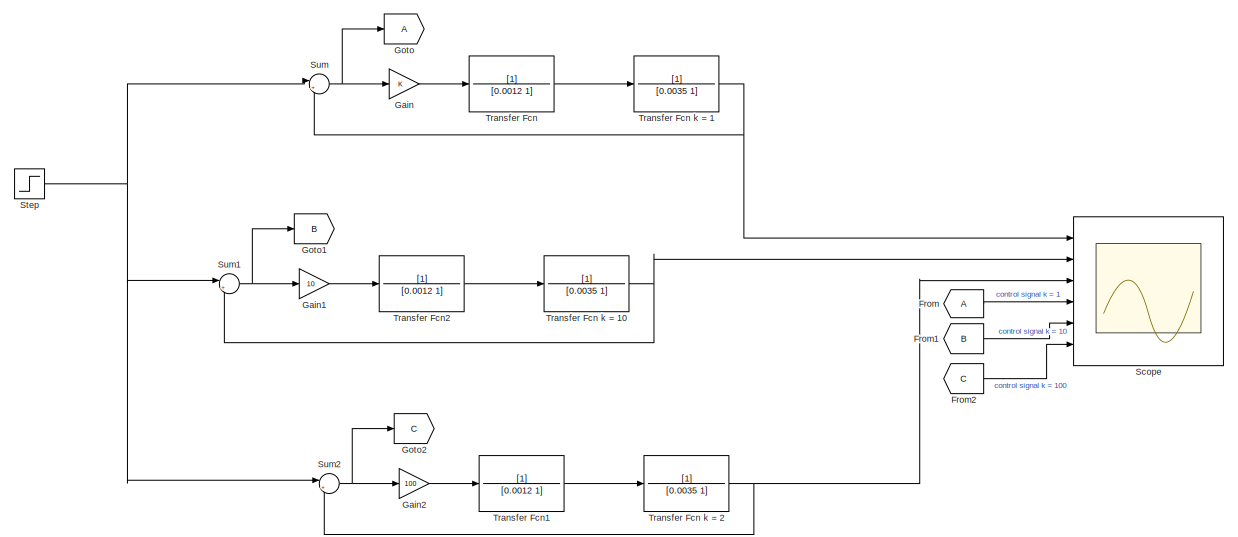
[diagram: root canvas - part 1/2, full width, top band]
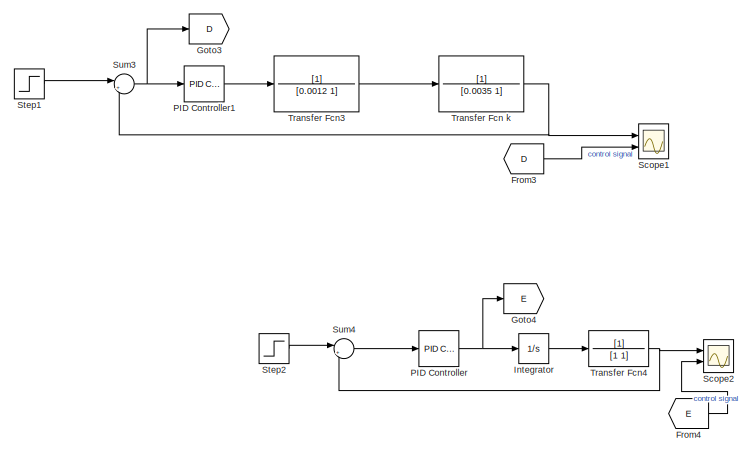
[diagram: root canvas - part 2/2, bottom center region]
MODEL slx_5337e425ebfc
KIND model
CONFIG AbsTol = auto
CONFIG EnableMultiTasking = off
CONFIG FixedStep = auto
CONFIG MaxStep = auto
CONFIG MinStep = auto
CONFIG RelTol = 1e-3
CONFIG SampleTimeConstraint = Unconstrained
CONFIG SolverName = VariableStepAuto
CONFIG StartTime = 0.0
CONFIG StopTime = 10
BLOCK [TransferFcn]  Transfer Fcn k = 10
  Denominator = [0.0035 1]
BLOCK [From] From
BLOCK [From] From1
  GotoTag = B
BLOCK [From] From2
  GotoTag = C
BLOCK [From] From3
  GotoTag = D
BLOCK [From] From4
  GotoTag = E
BLOCK [Gain] Gain
BLOCK [Gain] Gain1
  Gain = 10
BLOCK [Gain] Gain2
  Gain = 100
BLOCK [Goto] Goto
BLOCK [Goto] Goto1
  GotoTag = B
BLOCK [Goto] Goto2
  GotoTag = C
BLOCK [Goto] Goto3
  GotoTag = D
BLOCK [Goto] Goto4
  GotoTag = E
BLOCK [Integrator] Integrator
  Ports = [1, 1]
BLOCK [Reference] PID Controller  REF=slpidlib/PID Controller
  Ports = [1, 1]
  SourceBlock = slpidlib/PID Controller
  SourceProductBaseCode = SL
  SourceType = PID 1dof
BLOCK [Reference] PID Controller1  REF=slpidlib/PID Controller
  Ports = [1, 1]
  SourceBlock = slpidlib/PID Controller
  SourceProductBaseCode = SL
  SourceType = PID 1dof
BLOCK [Scope] Scope
  Floating = off
  NumInputPorts = 6
  Ports = [6]
  ScopeSpecificationString = Simulink.scopes.TimeScopeBlockCfg('CurrentConfiguration', extmgr.ConfigurationSet(extmgr.Configuration('Core','General UI',true),extmgr.Configuration('Core','Source UI',true),extmgr.Configuration('Sources','WiredSimulink',true),extmgr.Configuration('Visuals','Time Domain',true,'SerializedDisplays',{struct('MinYLimReal','-0.5071','MaxYLimReal','1.58884','YLabelReal','','MinYLimMag','0.00000','MaxYL...<+2086ch>
BLOCK [Scope] Scope1
  Floating = off
  NumInputPorts = 2
  Ports = [2]
  ScopeSpecificationString = Simulink.scopes.TimeScopeBlockCfg('CurrentConfiguration', extmgr.ConfigurationSet(extmgr.Configuration('Core','General UI',true),extmgr.Configuration('Core','Source UI',true),extmgr.Configuration('Sources','WiredSimulink',true,'DataLoggingVariableName','ScopeData1'),extmgr.Configuration('Visuals','Time Domain',true,'SerializedDisplays',{struct('MinYLimReal','-0.15584','MaxYLimReal','1.4026','YLabe...<+1827ch>
BLOCK [Scope] Scope2
  Floating = off
  NumInputPorts = 2
  Ports = [2]
  ScopeSpecificationString = Simulink.scopes.TimeScopeBlockCfg('CurrentConfiguration', extmgr.ConfigurationSet(extmgr.Configuration('Core','General UI',true),extmgr.Configuration('Core','Source UI',true),extmgr.Configuration('Sources','WiredSimulink',true,'DataLoggingVariableName','ScopeData2'),extmgr.Configuration('Visuals','Time Domain',true,'SerializedDisplays',{struct('MinYLimReal','-81.39286','MaxYLimReal','570.15476','Y...<+1885ch>
BLOCK [Step] Step
  SampleTime = 0
  Time = 0
BLOCK [Step] Step1
  SampleTime = 0
  Time = 0
BLOCK [Step] Step2
  SampleTime = 0
  Time = 0
BLOCK [Sum] Sum
  Inputs = |+-
  Ports = [2, 1]
BLOCK [Sum] Sum1
  Inputs = |+-
  Ports = [2, 1]
BLOCK [Sum] Sum2
  Inputs = |+-
  Ports = [2, 1]
BLOCK [Sum] Sum3
  Inputs = |+-
  Ports = [2, 1]
BLOCK [Sum] Sum4
  Inputs = |+-
  Ports = [2, 1]
BLOCK [TransferFcn] Transfer Fcn
  Denominator = [0.0012 1]
BLOCK [TransferFcn] Transfer Fcn k 
  Denominator = [0.0035 1]
BLOCK [TransferFcn] Transfer Fcn k = 1
  Denominator = [0.0035 1]
BLOCK [TransferFcn] Transfer Fcn k = 2
  Denominator = [0.0035 1]
BLOCK [TransferFcn] Transfer Fcn1
  Denominator = [0.0012 1]
BLOCK [TransferFcn] Transfer Fcn2
  Denominator = [0.0012 1]
BLOCK [TransferFcn] Transfer Fcn3
  Denominator = [0.0012 1]
BLOCK [TransferFcn] Transfer Fcn4
  Denominator = [1 1]
NET  Transfer Fcn k = 10:1 -> Scope:2, Sum1:2
LINE From1:1 -> Scope:5
LINE From2:1 -> Scope:6
LINE From3:1 -> Scope1:2
LINE From4:1 -> Scope2:2
LINE From:1 -> Scope:4
LINE Gain1:1 -> Transfer Fcn2:1
LINE Gain2:1 -> Transfer Fcn1:1
LINE Gain:1 -> Transfer Fcn:1
LINE Integrator:1 -> Transfer Fcn4:1
LINE PID Controller1:1 -> Transfer Fcn3:1
NET PID Controller:1 -> Goto4:1, Integrator:1
LINE Step1:1 -> Sum3:1
LINE Step2:1 -> Sum4:1
NET Step:1 -> Sum1:1, Sum2:1, Sum:1
NET Sum1:1 -> Gain1:1, Goto1:1
NET Sum2:1 -> Gain2:1, Goto2:1
NET Sum3:1 -> Goto3:1, PID Controller1:1
LINE Sum4:1 -> PID Controller:1
NET Sum:1 -> Gain:1, Goto:1
NET Transfer Fcn k :1 -> Scope1:1, Sum3:2
NET Transfer Fcn k = 1:1 -> Scope:1, Sum:2
NET Transfer Fcn k = 2:1 -> Scope:3, Sum2:2
LINE Transfer Fcn1:1 -> Transfer Fcn k = 2:1
LINE Transfer Fcn2:1 ->  Transfer Fcn k = 10:1
LINE Transfer Fcn3:1 -> Transfer Fcn k :1
NET Transfer Fcn4:1 -> Scope2:1, Sum4:2
LINE Transfer Fcn:1 -> Transfer Fcn k = 1:1
note: NET lines group one-source signal fan-out (src -> all destinations, sorted); 1:1 wires keep LINE
